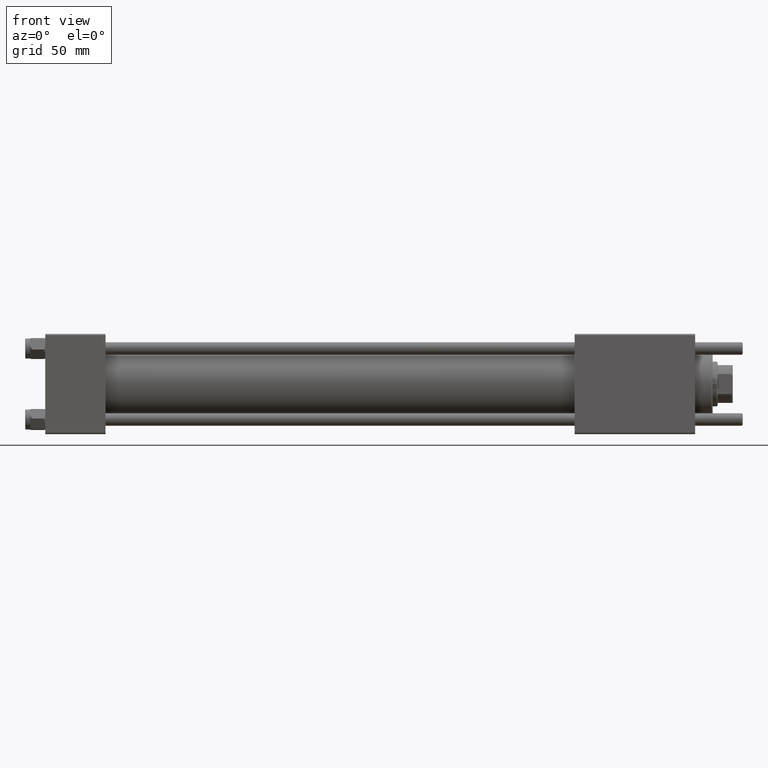
[diagram: clean part render]
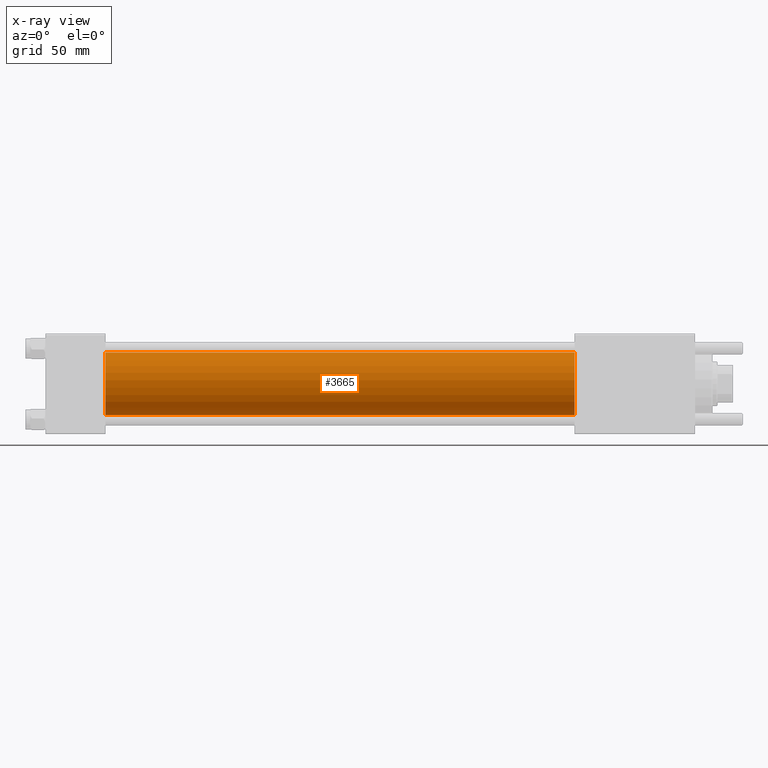
[diagram: x-ray — body ghosted, one internal face saturated and labeled with its STEP entity id]
A machine part, front view, then the same camera in x-ray: the body is ghosted and one INTERNAL B-rep face — a face not visible from any outside direction — is saturated and labeled: STEP entity #3665.
In plain terms, the highlighted cylindrical surface (edge-blend (fillet) strip) has radius 12.5 mm, axis along (-1, -0, -0).
Its self-contained STEP definition (entity closure, byte-faithful):
#799 = DIRECTION ( 'NONE',  ( -1.000000000000000000, -0.000000000000000000, -0.000000000000000000 ) ) ;
#1179 = ORIENTED_EDGE ( 'NONE', *, *, #6853, .F. ) ;
#3459 = AXIS2_PLACEMENT_3D ( 'NONE', #29637, #7860, #47146 ) ;
#3665 = ADVANCED_FACE ( 'NONE', ( #47275 ), #7988, .F. ) ;
#5086 = CARTESIAN_POINT ( 'NONE',  ( 211.0000000000000000, -2.602085213965210642E-15, 12.49999999999999645 ) ) ;
#6558 = AXIS2_PLACEMENT_3D ( 'NONE', #20780, #29075, #37692 ) ;
#6853 = EDGE_CURVE ( 'NONE', #17764, #19499, #52975, .T. ) ;
#7860 = DIRECTION ( 'NONE',  ( 1.000000000000000000, 0.000000000000000000, 0.000000000000000000 ) ) ;
#7988 = CYLINDRICAL_SURFACE ( 'NONE', #43650, 12.49999999999999645 ) ;
#11234 = VECTOR ( 'NONE', #38178, 1000.000000000000000 ) ;
#16859 = EDGE_LOOP ( 'NONE', ( #30106, #20800, #47102, #1179 ) ) ;
#17764 = VERTEX_POINT ( 'NONE', #25134 ) ;
#19499 = VERTEX_POINT ( 'NONE', #52874 ) ;
#20780 = CARTESIAN_POINT ( 'NONE',  ( 211.0000000000000000, -2.602085213965210642E-15, 0.000000000000000000 ) ) ;
#20800 = ORIENTED_EDGE ( 'NONE', *, *, #35450, .T. ) ;
#21802 = LINE ( 'NONE', #56510, #11234 ) ;
#25134 = CARTESIAN_POINT ( 'NONE',  ( 211.0000000000000000, -2.602085213965210642E-15, 12.49999999999999645 ) ) ;
#27422 = DIRECTION ( 'NONE',  ( 0.000000000000000000, 0.000000000000000000, 1.000000000000000000 ) ) ;
#28153 = CIRCLE ( 'NONE', #3459, 12.49999999999999645 ) ;
#29075 = DIRECTION ( 'NONE',  ( 1.000000000000000000, 0.000000000000000000, 0.000000000000000000 ) ) ;
#29637 = CARTESIAN_POINT ( 'NONE',  ( 24.00000000000000000, -2.602085213965210642E-15, 0.000000000000000000 ) ) ;
#30106 = ORIENTED_EDGE ( 'NONE', *, *, #32880, .T. ) ;
#32880 = EDGE_CURVE ( 'NONE', #17764, #38651, #38678, .T. ) ;
#34230 = CARTESIAN_POINT ( 'NONE',  ( 24.00000000000000000, -1.071276715031019515E-15, -12.49999999999999645 ) ) ;
#35450 = EDGE_CURVE ( 'NONE', #38651, #48026, #21802, .T. ) ;
#37692 = DIRECTION ( 'NONE',  ( 0.000000000000000000, 0.000000000000000000, -1.000000000000000000 ) ) ;
#38178 = DIRECTION ( 'NONE',  ( -1.000000000000000000, -0.000000000000000000, -0.000000000000000000 ) ) ;
#38651 = VERTEX_POINT ( 'NONE', #41807 ) ;
#38678 = CIRCLE ( 'NONE', #6558, 12.49999999999999645 ) ;
#41807 = CARTESIAN_POINT ( 'NONE',  ( 211.0000000000000000, -1.071276715031019515E-15, -12.49999999999999645 ) ) ;
#42971 = CARTESIAN_POINT ( 'NONE',  ( 211.0000000000000000, -2.602085213965210642E-15, 0.000000000000000000 ) ) ;
#43650 = AXIS2_PLACEMENT_3D ( 'NONE', #42971, #53817, #27422 ) ;
#47102 = ORIENTED_EDGE ( 'NONE', *, *, #55886, .F. ) ;
#47146 = DIRECTION ( 'NONE',  ( 0.000000000000000000, 0.000000000000000000, -1.000000000000000000 ) ) ;
#47275 = FACE_OUTER_BOUND ( 'NONE', #16859, .T. ) ;
#48026 = VERTEX_POINT ( 'NONE', #34230 ) ;
#50177 = VECTOR ( 'NONE', #799, 1000.000000000000000 ) ;
#52874 = CARTESIAN_POINT ( 'NONE',  ( 24.00000000000000000, -2.602085213965210642E-15, 12.49999999999999645 ) ) ;
#52975 = LINE ( 'NONE', #5086, #50177 ) ;
#53817 = DIRECTION ( 'NONE',  ( -1.000000000000000000, -0.000000000000000000, -0.000000000000000000 ) ) ;
#55886 = EDGE_CURVE ( 'NONE', #19499, #48026, #28153, .T. ) ;
#56510 = CARTESIAN_POINT ( 'NONE',  ( 211.0000000000000000, -1.071276715031019515E-15, -12.49999999999999645 ) ) ;